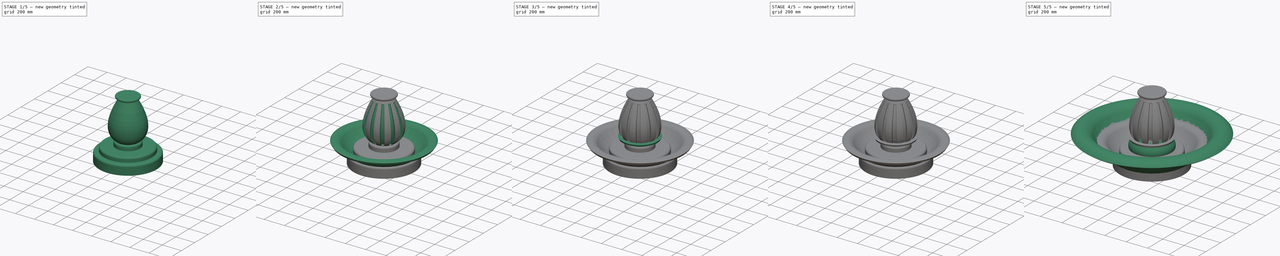
[diagram: build sequence overview — one tinted view per stage of 5, left to right]
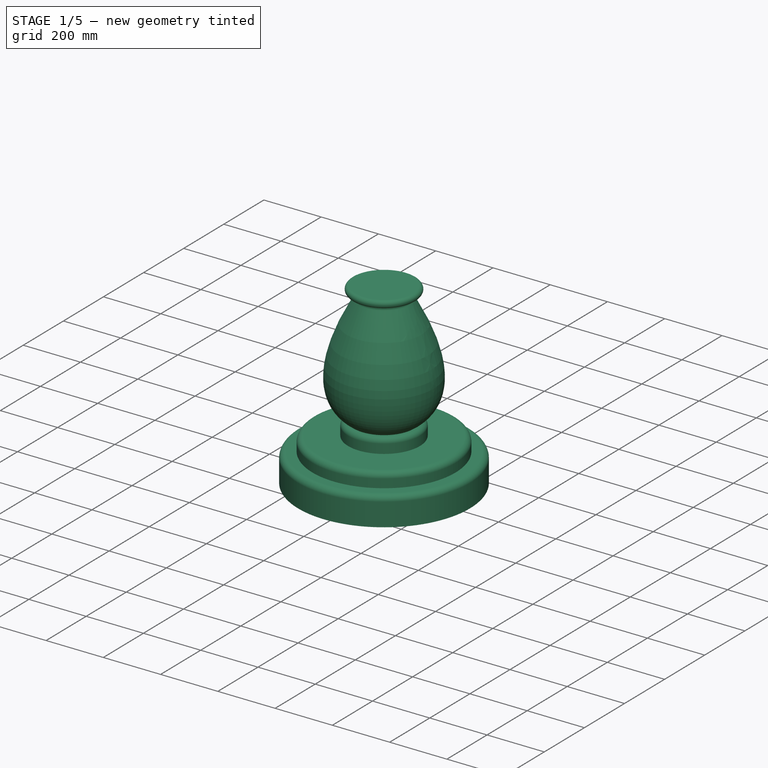
[diagram: stage 1 of 5 — iso view after this stage's code; geometry added in this stage tinted green]
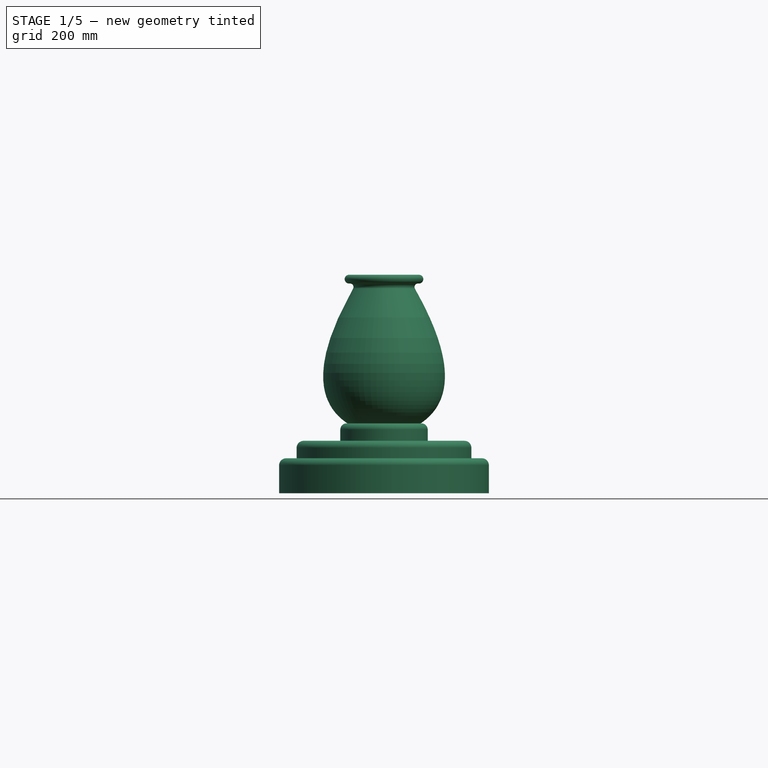
[diagram: stage 1 of 5 — front view after this stage's code; geometry added in this stage tinted green]
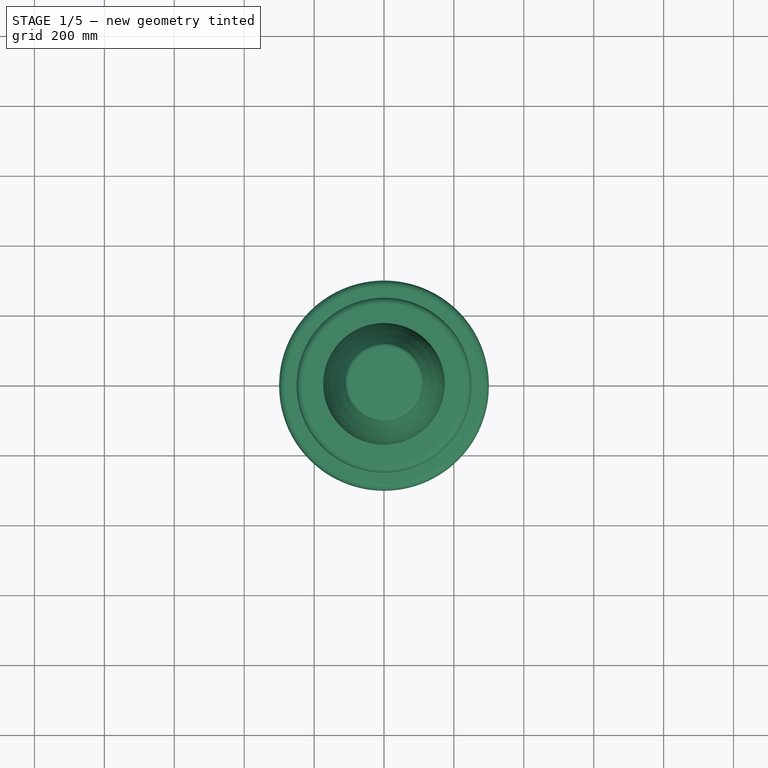
[diagram: stage 1 of 5 — top view after this stage's code; geometry added in this stage tinted green]
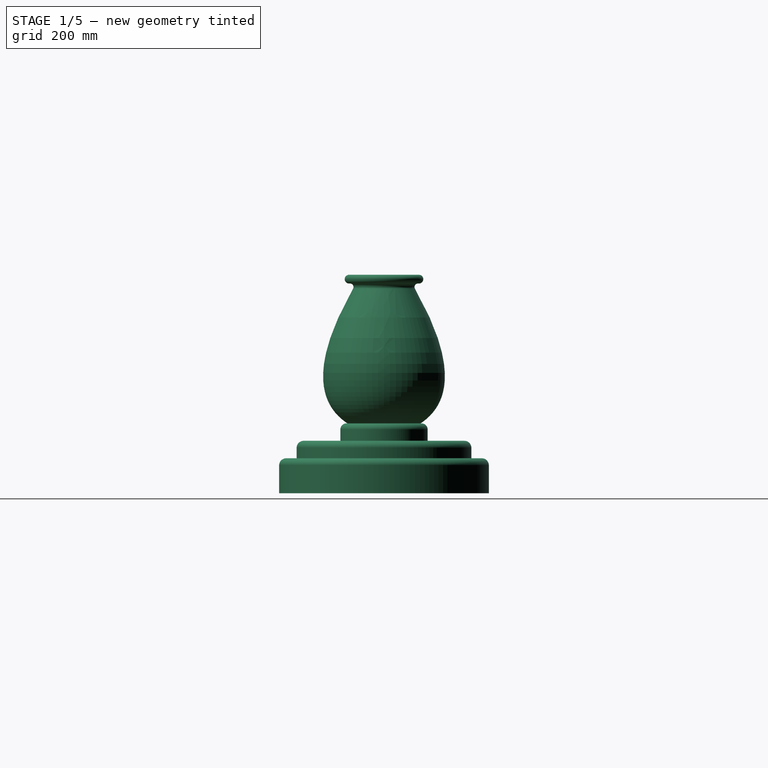
[diagram: stage 1 of 5 — right view after this stage's code; geometry added in this stage tinted green]
FCSTD DOCUMENT  (FreeCAD 0.18.4R)
Label: Fountain
License: All rights reserved
LicenseURL: http://en.wikipedia.org/wiki/All_rights_reserved
objects: Sketcher::SketchObject×10, PartDesign::Fillet×8, PartDesign::Revolution×6, PartDesign::Body×3, PartDesign::PolarPattern×3, PartDesign::Pad×2, PartDesign::Groove×2, PartDesign::Point×1, App::Part×1
note: 45 computed .brp shape members not serialized (recipe doc carries the construction recipe); baked Part::Feature solids carry a one-line shape summary decoded from their .brp

FEATURE [Sketcher::SketchObject] Sketch
  MapMode = 5
  Placement = pos=(0,0,0) rot=(1,0,0;1.5708rad)
  Support = -> [XZ_Plane001]
  sketch-geometry (18):
    g0: LineSegment StartX=0 StartY=0 StartZ=0 EndX=300 EndY=0 EndZ=0
    g1: LineSegment StartX=300 StartY=0 StartZ=0 EndX=300 EndY=100 EndZ=0
    g2: LineSegment StartX=300 StartY=100 StartZ=0 EndX=250 EndY=100 EndZ=0
    g3: LineSegment StartX=250 StartY=100 StartZ=0 EndX=250 EndY=150 EndZ=0
    g4: LineSegment StartX=250 StartY=150 StartZ=0 EndX=125 EndY=150 EndZ=0
    g5: LineSegment StartX=125 StartY=150 StartZ=0 EndX=125 EndY=200 EndZ=0
    g6: LineSegment StartX=80 StartY=600 StartZ=0 EndX=100 EndY=600 EndZ=0
    g7: LineSegment [constr] StartX=100 StartY=600 StartZ=0 EndX=100 EndY=625 EndZ=0
    g8: ArcOfCircle CenterX=100 CenterY=612.5 CenterZ=0 NormalX=0 NormalY=0 NormalZ=1 AngleXU=0 Radius=12.5 StartAngle=4.71239 EndAngle=7.85398
    g9: LineSegment StartX=125 StartY=200 StartZ=0 EndX=105 EndY=200 EndZ=0
    g10: Circle [constr] CenterX=80 CenterY=600 CenterZ=0 NormalX=0 NormalY=0 NormalZ=1 AngleXU=0 Radius=20
    g11: Circle [constr] CenterX=255 CenterY=300 CenterZ=0 NormalX=0 NormalY=0 NormalZ=1 AngleXU=0 Radius=20
    g12: Circle [constr] CenterX=105 CenterY=200 CenterZ=0 NormalX=0 NormalY=0 NormalZ=1 AngleXU=0 Radius=20
    g13: BSplineCurve PolesCount=3 KnotsCount=2 Degree=2 IsPeriodic=0
    g14: GeomPoint [constr] X=80 Y=600 Z=0
    g15: GeomPoint [constr] X=105 Y=200 Z=0
    g16: LineSegment StartX=100 StartY=625 StartZ=0 EndX=0 EndY=625 EndZ=0
    g17: LineSegment StartX=0 StartY=625 StartZ=0 EndX=0 EndY=0 EndZ=0
  constraints (47):
    c: Coincident(g0,g-1)
    c: Horizontal(g0)
    c: Coincident(g0,g1)
    c: Vertical(g1)
    c: Coincident(g1,g2)
    c: Horizontal(g2)
    c: Coincident(g2,g3)
    c: Vertical(g3)
    c: Coincident(g3,g4)
    c: Coincident(g4,g5)
    c: Vertical(g5)
    c: DistanceX(g0,g0) = 300
    c: DistanceY(g1,g1) = 100
    c: DistanceX(g2,g2) = 50
    c: DistanceX(g0,g4) = 125
    c: Horizontal(g4)
    c: DistanceY(g5,g5) = 50
    c: Equal(g3,g5)
    c: Horizontal(g6)
    c: Coincident(g6,g7)
    c: Vertical(g7)
    c: PointOnObject(g8,g7)
    c: Coincident(g8,g7)
    c: Coincident(g8,g6)
    c: Radius(g8) = 12.5
    c: DistanceX(g0,g7) = 100
    c: DistanceX(g6,g6) = 20
    c: Coincident(g9,g5)
    c: Horizontal(g9)
    c: Coincident(g13,g6)
    c: Radius(g10) = 20
    c: Equal(g10,g11)
    c: Equal(g10,g12)
    c: Coincident(g13,g9)
    c: InternalAlignment(g10,g13)
    c: InternalAlignment(g11,g13)
    c: InternalAlignment(g12,g13)
    c: InternalAlignment(g14,g13)
    c: InternalAlignment(g15,g13)
    c: DistanceY(g0,g6) = 600
    c: Equal(g9,g6)
    c: Tangent(g8,g16) = -1.5708
    c: Coincident(g16,g17)
    c: Coincident(g17,g0)
    c: Vertical(g17)
    c: DistanceY(g9,g11) = 100
    c: DistanceX(g9,g11) = 150
FEATURE [PartDesign::Revolution] Revolution
  Angle = 360
  Axis = (0,2e-16,1)
  Base = (0,0,0)
  Placement = pos=(0,0,0) rot=(1,0,0;1.5708rad)
  Profile = -> Sketch
  ReferenceAxis = -> Sketch [V_Axis]
  Refine = true
  Reversed = true
FEATURE [PartDesign::Fillet] Fillet001
  Base = -> Revolution [Edge6,Edge9]
  BaseFeature = -> Revolution
  Placement = pos=(0,0,0) rot=(1,0,0;1.5708rad)
  Radius = 20
FEATURE [PartDesign::Fillet] Fillet002
  Base = -> Fillet001 [Edge12]
  BaseFeature = -> Fillet001
  Placement = pos=(0,0,0) rot=(1,0,0;1.5708rad)
  Radius = 18
FEATURE [PartDesign::Fillet] Fillet003
  Base = -> Fillet002 [Edge10]
  BaseFeature = -> Fillet002
  Placement = pos=(0,0,0) rot=(1,0,0;1.5708rad)
  Radius = 10
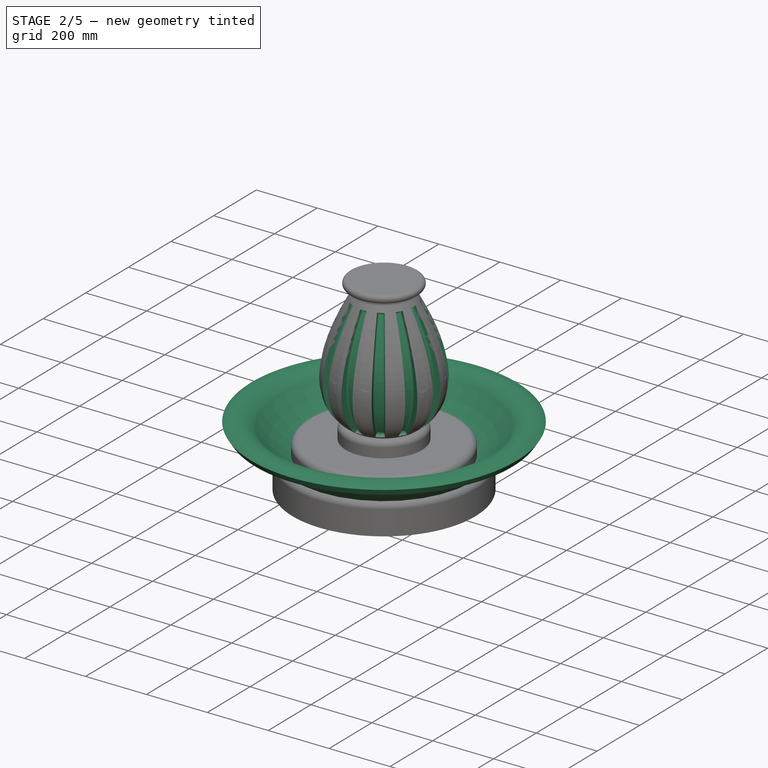
[diagram: stage 2 of 5 — iso view after this stage's code; geometry added in this stage tinted green]
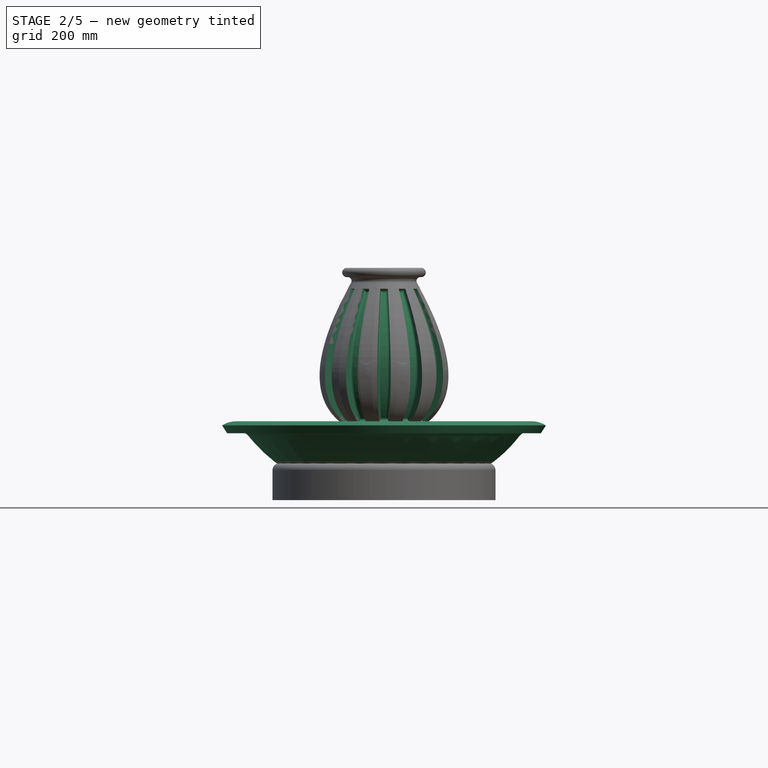
[diagram: stage 2 of 5 — front view after this stage's code; geometry added in this stage tinted green]
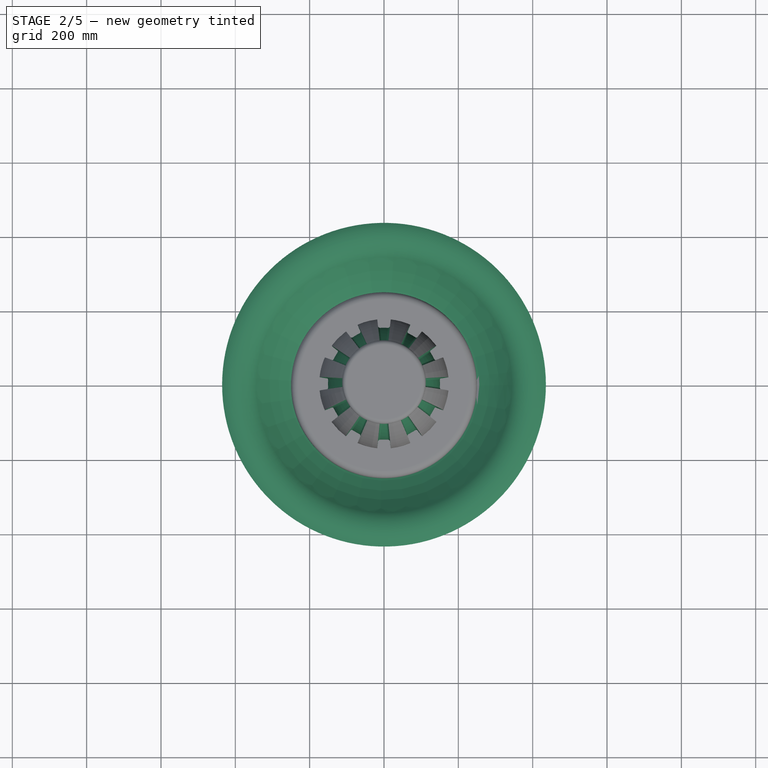
[diagram: stage 2 of 5 — top view after this stage's code; geometry added in this stage tinted green]
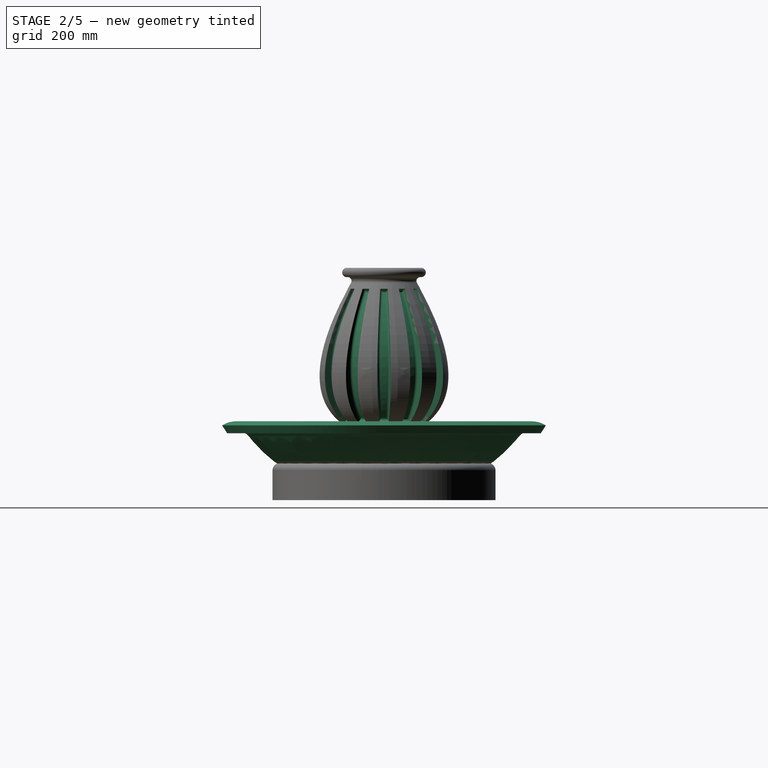
[diagram: stage 2 of 5 — right view after this stage's code; geometry added in this stage tinted green]
FEATURE [PartDesign::Body] Body001  label="Tina grande"
  Group = -> [Sketch001,Revolution001,Sketch002,Pad,Fillet,DatumPoint,Sketch003,Revolution002]
  Origin = -> Origin002
  Placement = pos=(0,0,625) rot=(0,0,1;0rad)
  Tip = -> Revolution002
FEATURE [Sketcher::SketchObject] Sketch004
  MapMode = 5
  Placement = pos=(0,0,0) rot=(1,0,0;1.5708rad)
  Support = -> [XZ_Plane003]
  sketch-geometry (12):
    g0: LineSegment StartX=0 StartY=0 StartZ=0 EndX=125 EndY=0 EndZ=0
    g1: LineSegment StartX=125 StartY=0 StartZ=0 EndX=125 EndY=30 EndZ=0
    g2: LineSegment StartX=0 StartY=25 StartZ=0 EndX=0 EndY=0 EndZ=0
    g3: ArcOfCircle CenterX=63.6614 CenterY=405.017 CenterZ=0 NormalX=0 NormalY=0 NormalZ=1 AngleXU=0 Radius=380 StartAngle=4.87452 EndAngle=5.6164
    g4: ArcOfCircle CenterX=397.632 CenterY=142.169 CenterZ=0 NormalX=0 NormalY=0 NormalZ=1 AngleXU=0 Radius=45 StartAngle=0.998551 EndAngle=2.4748
    g5: LineSegment StartX=0 StartY=25 StartZ=0 EndX=100 EndY=25 EndZ=0
    g6: LineSegment StartX=100 StartY=25 StartZ=0 EndX=100 EndY=51.5018 EndZ=0
    g7: LineSegment StartX=422 StartY=180 StartZ=0 EndX=435.538 EndY=201.017 EndZ=0
    g8: LineSegment [constr] StartX=100 StartY=25 StartZ=0 EndX=125 EndY=25 EndZ=0
    g9: ArcOfCircle CenterX=63.3365 CenterY=404.604 CenterZ=0 NormalX=0 NormalY=0 NormalZ=1 AngleXU=0 Radius=355 StartAngle=4.81585 EndAngle=5.61763
    g10: ArcOfCircle CenterX=397.632 CenterY=142.169 CenterZ=0 NormalX=0 NormalY=0 NormalZ=1 AngleXU=0 Radius=70 StartAngle=0.998551 EndAngle=2.47604
    g11: LineSegment [constr] StartX=125 StartY=30 StartZ=0 EndX=125 EndY=55 EndZ=0
  constraints (36):
    c: Coincident(g0,g1)
    c: Coincident(g2,g0)
    c: Horizontal(g0)
    c: Vertical(g1)
    c: Vertical(g2)
    c: Coincident(g0,g-1)
    c: Coincident(g3,g1)
    c: Coincident(g2,g5)
    c: Horizontal(g5)
    c: Coincident(g5,g6)
    c: Vertical(g6)
    c: Tangent(g4,g3) = 1.5708
    c: Radius(g3) = 380
    c: DistanceY(g1,g1) = 30
    c: DistanceY(g2,g2) = 25
    c: Coincident(g8,g5)
    c: PointOnObject(g8,g1)
    c: Horizontal(g8)
    c: Equal(g8,g2)
    c: Coincident(g7,g4)
    c: Radius(g4) = 45
    c: Equal(g7,g2)
    c: Coincident(g9,g6)
    c: Coincident(g10,g7)
    c: Radius(g10) = 70
    c: Radius(g9) = 355
    c: Coincident(g11,g1)
    c: PointOnObject(g11,g9)
    c: Vertical(g11)
    c: DistanceY(g0,g4) = 180
    c: DistanceX(g0,g4) = 422
    c: Equal(g11,g8)
    c: Tangent(g10,g9) = 1.5708
    c: Coincident(g10,g4)
    c: DistanceY(g0,g3) = 170
    c: DistanceX(g5,g5) = 100
FEATURE [PartDesign::Revolution] Revolution003
  Angle = 360
  Axis = (0,2e-16,1)
  Base = (0,0,0)
  Placement = pos=(0,0,0) rot=(1,0,0;1.5708rad)
  Profile = -> Sketch004
  ReferenceAxis = -> Sketch004 [V_Axis]
  Refine = true
  Reversed = true
FEATURE [PartDesign::Body] Body002  label="Tina chica"
  Group = -> [Sketch004,Revolution003,Sketch005,Revolution004,Sketch006,Revolution005,Sketch007,Pad001,Sketch008,Groove,PolarPattern,PolarPattern001,Fillet004,Fillet005,Fillet006]
  Origin = -> Origin003
  Placement = pos=(0,0,1150) rot=(0,0,1;0rad)
  Tip = -> Fillet006
FEATURE [Sketcher::SketchObject] Sketch009
  MapMode = 5
  Placement = pos=(0,0,0) rot=(1,0,0;1.5708rad)
  Support = -> [XZ_Plane001]
  sketch-geometry (10):
    g0: Circle [constr] CenterX=84.8833 CenterY=563.888 CenterZ=0 NormalX=0 NormalY=0 NormalZ=1 AngleXU=0 Radius=30
    g1: Circle [constr] CenterX=203.354 CenterY=347.113 CenterZ=0 NormalX=0 NormalY=0 NormalZ=1 AngleXU=0 Radius=30
    g2: Circle [constr] CenterX=108.506 CenterY=218.19 CenterZ=0 NormalX=0 NormalY=0 NormalZ=1 AngleXU=0 Radius=30
    g3: BSplineCurve PolesCount=3 KnotsCount=2 Degree=2 IsPeriodic=0
    g4: GeomPoint [constr] X=84.8833 Y=563.888 Z=0
    g5: GeomPoint [constr] X=108.506 Y=218.19 Z=0
    g6: LineSegment StartX=108.506 StartY=218.19 StartZ=0 EndX=140.968 EndY=184.531 EndZ=0
    g7: LineSegment StartX=140.968 StartY=184.531 StartZ=0 EndX=284.644 EndY=418.321 EndZ=0
    g8: LineSegment StartX=284.644 StartY=418.321 StartZ=0 EndX=165.544 EndY=594.136 EndZ=0
    g9: LineSegment StartX=165.544 StartY=594.136 StartZ=0 EndX=84.8833 EndY=563.888 EndZ=0
  constraints (13):
    c: Radius(g0) = 30
    c: Equal(g0,g1)
    c: Equal(g0,g2)
    c: InternalAlignment(g0,g3)
    c: InternalAlignment(g1,g3)
    c: InternalAlignment(g2,g3)
    c: InternalAlignment(g4,g3)
    c: InternalAlignment(g5,g3)
    c: Coincident(g6,g3)
    c: Coincident(g6,g7)
    c: Coincident(g7,g8)
    c: Coincident(g8,g9)
    c: Coincident(g9,g3)
FEATURE [PartDesign::Groove] Groove001
  Angle = 12
  Axis = (0,2e-16,1)
  Base = (0,0,0)
  BaseFeature = -> Fillet003
  Midplane = true
  Placement = pos=(0,0,0) rot=(1,0,0;1.5708rad)
  Profile = -> Sketch009
  ReferenceAxis = -> Sketch009 [V_Axis]
  Refine = true
FEATURE [PartDesign::PolarPattern] PolarPattern002
  Angle = 360
  Axis = -> Z_Axis001
  BaseFeature = -> Groove001
  Occurrences = 12
  Originals = -> [Groove001]
  Placement = pos=(0,0,0) rot=(1,0,0;1.5708rad)
  Refine = true
FEATURE [PartDesign::Fillet] Fillet007
  Base = -> PolarPattern002 [Face64,Face63,Face52,Face65,Face61,Face62,Face55,Face56,Face57,Face60,Face59,Face58]
  BaseFeature = -> PolarPattern002
  Placement = pos=(0,0,0) rot=(1,0,0;1.5708rad)
  Radius = 6
FEATURE [PartDesign::Body] Body  label="Base"
  Group = -> [Sketch,Revolution,Fillet001,Fillet002,Fillet003,Sketch009,Groove001,PolarPattern002,Fillet007]
  Origin = -> Origin001
  Tip = -> Fillet007
FEATURE [App::Part] Part  label="Fountain"
  Group = -> [Body,Body001,Body002]
  Origin = -> Origin
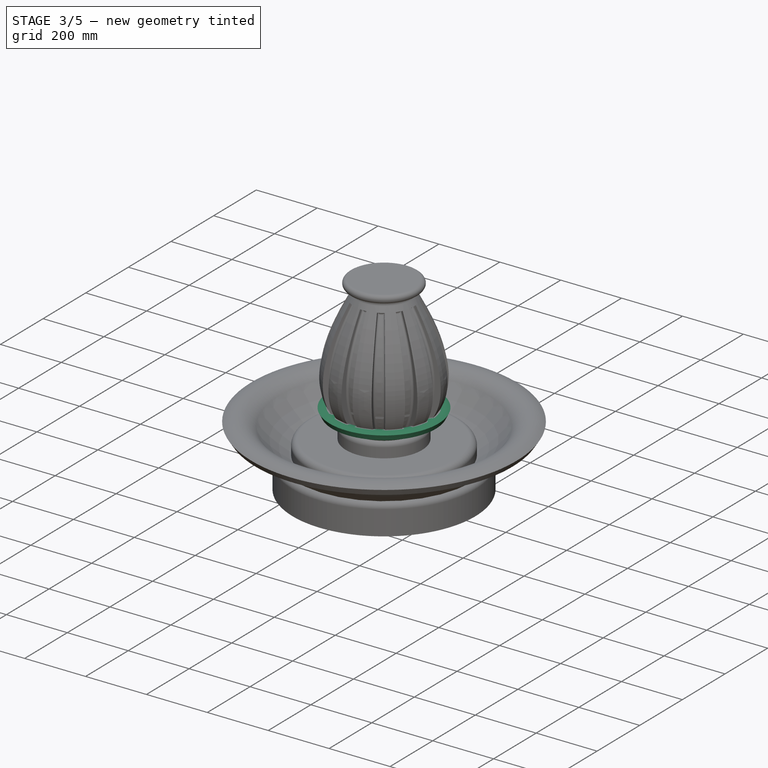
[diagram: stage 3 of 5 — iso view after this stage's code; geometry added in this stage tinted green]
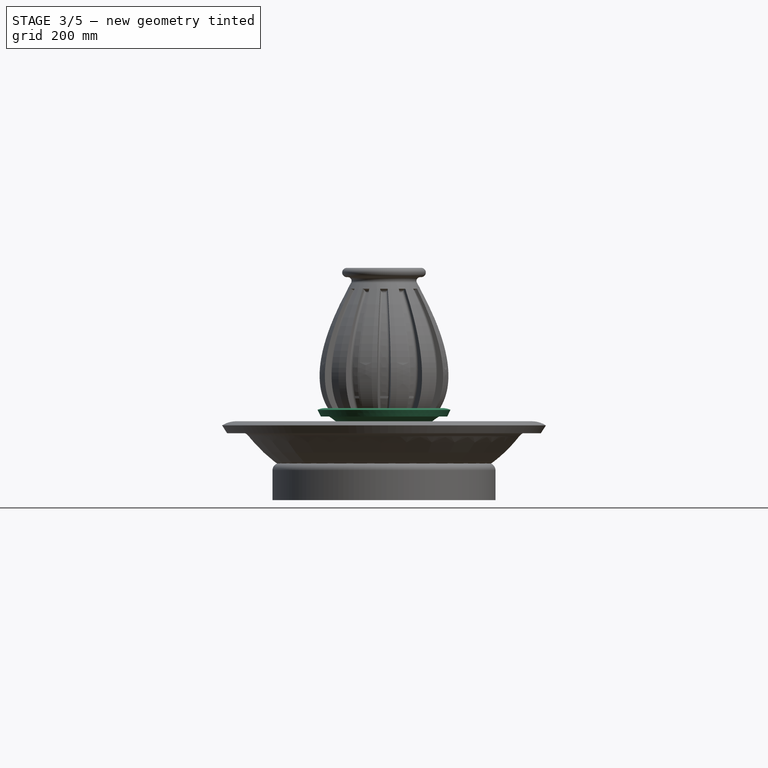
[diagram: stage 3 of 5 — front view after this stage's code; geometry added in this stage tinted green]
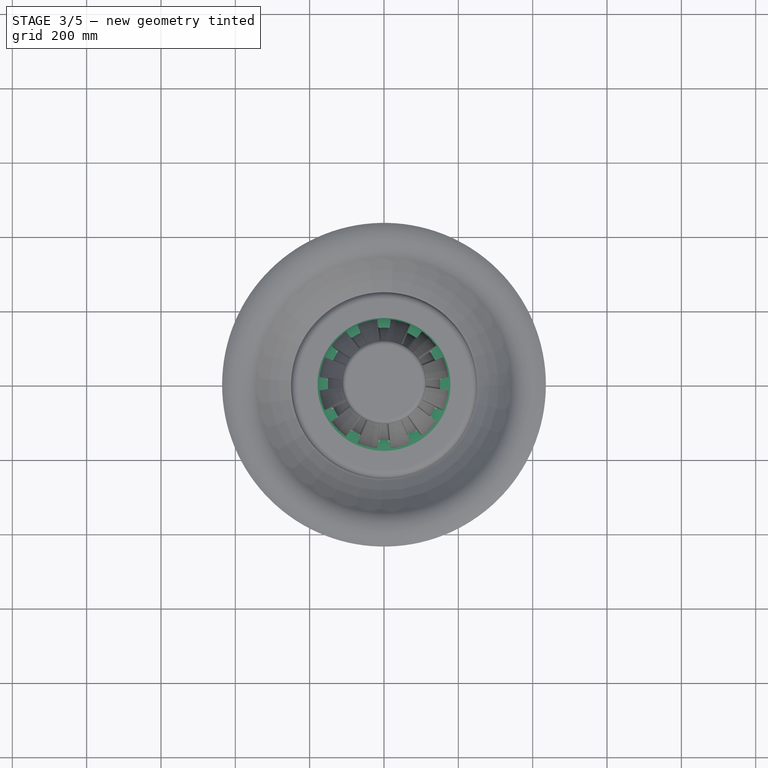
[diagram: stage 3 of 5 — top view after this stage's code; geometry added in this stage tinted green]
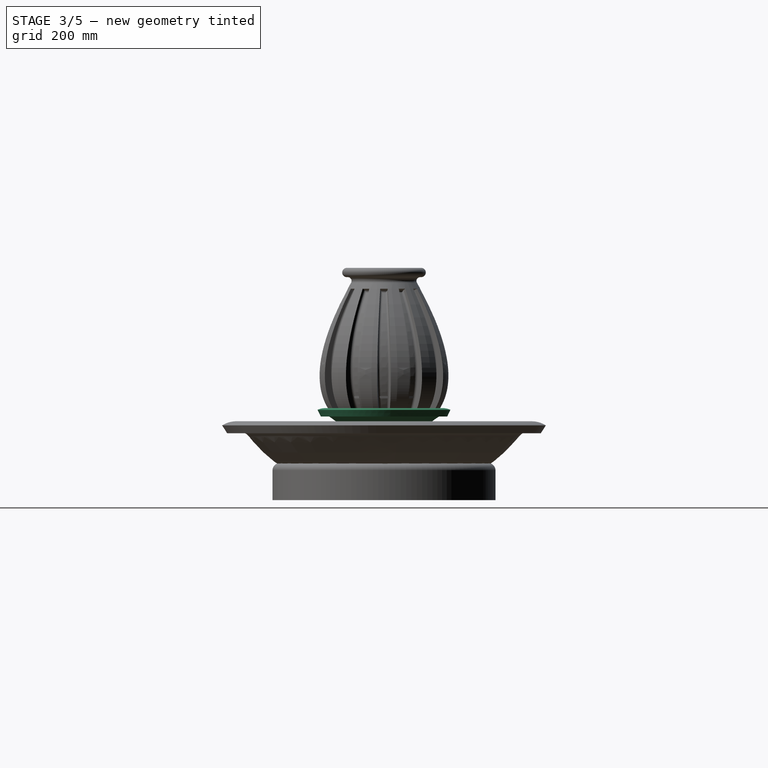
[diagram: stage 3 of 5 — right view after this stage's code; geometry added in this stage tinted green]
FEATURE [Sketcher::SketchObject] Sketch005
  ExternalGeometry = -> [Revolution003]
  MapMode = 5
  Placement = pos=(0,0,0) rot=(1,0,0;1.5708rad)
  Support = -> [XZ_Plane003]
  sketch-geometry (11):
    g0: LineSegment StartX=0 StartY=25 StartZ=0 EndX=80 EndY=25 EndZ=0
    g1: LineSegment StartX=80 StartY=25 StartZ=0 EndX=80 EndY=105 EndZ=0
    g2: LineSegment StartX=0 StartY=45 StartZ=0 EndX=0 EndY=25 EndZ=0
    g3: LineSegment StartX=0 StartY=45 StartZ=0 EndX=60 EndY=45 EndZ=0
    g4: LineSegment StartX=60 StartY=45 StartZ=0 EndX=60 EndY=105 EndZ=0
    g5: LineSegment [constr] StartX=60 StartY=45 StartZ=0 EndX=80 EndY=45 EndZ=0
    g6: ArcOfCircle CenterX=220 CenterY=105 CenterZ=0 NormalX=0 NormalY=0 NormalZ=1 AngleXU=0 Radius=140 StartAngle=2.12934 EndAngle=3.14159
    g7: ArcOfCircle CenterX=159.055 CenterY=202.523 CenterZ=0 NormalX=0 NormalY=0 NormalZ=1 AngleXU=0 Radius=25 StartAngle=1.11766 EndAngle=2.12934
    g8: ArcOfCircle CenterX=220 CenterY=105 CenterZ=0 NormalX=0 NormalY=0 NormalZ=1 AngleXU=0 Radius=160 StartAngle=2.12934 EndAngle=3.14159
    g9: ArcOfCircle CenterX=159.055 CenterY=202.523 CenterZ=0 NormalX=0 NormalY=0 NormalZ=1 AngleXU=0 Radius=45 StartAngle=1.11766 EndAngle=2.12934
    g10: LineSegment StartX=170 StartY=225 StartZ=0 EndX=178.756 EndY=242.982 EndZ=0
  constraints (31):
    c: Coincident(g0,g1)
    c: Coincident(g2,g0)
    c: Horizontal(g0)
    c: Vertical(g1)
    c: Vertical(g2)
    c: PointOnObject(g0,g-2)
    c: Horizontal(g-3,g0)
    c: DistanceX(g0,g0) = 80
    c: DistanceY(g2,g2) = 20
    c: Coincident(g3,g2)
    c: Horizontal(g3)
    c: Coincident(g4,g3)
    c: Vertical(g4)
    c: Coincident(g5,g3)
    c: PointOnObject(g5,g1)
    c: Horizontal(g5)
    c: Equal(g5,g2)
    c: Coincident(g9,g7)
    c: Coincident(g10,g7)
    c: Coincident(g10,g9)
    c: Tangent(g6,g1) = 1.5708
    c: Tangent(g8,g4) = 1.5708
    c: Tangent(g7,g6) = -1.5708
    c: Equal(g10,g2)
    c: Coincident(g6,g8)
    c: DistanceY(g0,g1) = 80
    c: Radius(g6) = 140
    c: Radius(g7) = 25
    c: DistanceY(g0,g7) = 200
    c: DistanceX(g0,g7) = 90
    c: Tangent(g9,g8) = -1.5708
FEATURE [PartDesign::Revolution] Revolution004
  Angle = 360
  Axis = (0,2e-16,1)
  Base = (0,0,0)
  BaseFeature = -> Revolution003
  Placement = pos=(0,0,0) rot=(1,0,0;1.5708rad)
  Profile = -> Sketch005
  ReferenceAxis = -> Sketch005 [V_Axis]
  Refine = true
  Reversed = true
FEATURE [Sketcher::SketchObject] Sketch006
  ExternalGeometry = -> [Revolution004]
  MapMode = 5
  Placement = pos=(0,0,0) rot=(1,0,0;1.5708rad)
  Support = -> [XZ_Plane003]
  sketch-geometry (5):
    g0: LineSegment StartX=7.11e-14 StartY=45 StartZ=0 EndX=40 EndY=45 EndZ=0
    g1: LineSegment StartX=40 StartY=45 StartZ=0 EndX=40 EndY=195 EndZ=0
    g2: LineSegment StartX=7.11e-14 StartY=525 StartZ=0 EndX=7.11e-14 EndY=45 EndZ=0
    g3: ArcOfCircle CenterX=110 CenterY=195 CenterZ=0 NormalX=0 NormalY=0 NormalZ=1 AngleXU=0 Radius=70 StartAngle=1.37737 EndAngle=3.14159
    g4: ArcOfCircle CenterX=-42.72 CenterY=345 CenterZ=0 NormalX=0 NormalY=0 NormalZ=1 AngleXU=0 Radius=185 StartAngle=5.82816 EndAngle=7.62096
  constraints (16):
    c: Coincident(g0,g1)
    c: Coincident(g2,g0)
    c: Horizontal(g0)
    c: Vertical(g1)
    c: Vertical(g2)
    c: PointOnObject(g0,g-2)
    c: DistanceX(g0,g0) = 40
    c: Horizontal(g0,g-3)
    c: Coincident(g4,g3)
    c: Coincident(g2,g4)
    c: Tangent(g3,g1) = 1.5708
    c: DistanceY(g1,g1) = 150
    c: Radius(g3) = 70
    c: DistanceY(g2,g2) = 480
    c: DistanceY(g0,g4) = 300
    c: Radius(g4) = 185
FEATURE [PartDesign::Revolution] Revolution005
  Angle = 360
  Axis = (0,2e-16,1)
  Base = (0,0,0)
  BaseFeature = -> Revolution004
  Placement = pos=(0,0,0) rot=(1,0,0;1.5708rad)
  Profile = -> Sketch006
  ReferenceAxis = -> Sketch006 [V_Axis]
  Refine = true
  Reversed = true
FEATURE [Sketcher::SketchObject] Sketch007
  ExternalGeometry = -> [Revolution005]
  MapMode = 5
  Placement = pos=(0,0,0) rot=(1,0,0;1.5708rad)
  Support = -> [XZ_Plane003]
  sketch-geometry (3):
    g0: ArcOfCircle CenterX=9.51206 CenterY=283.857 CenterZ=0 NormalX=0 NormalY=0 NormalZ=1 AngleXU=0 Radius=22 StartAngle=2.01791 EndAngle=3.62177
    g1: LineSegment StartX=-10 StartY=273.695 StartZ=0 EndX=10 EndY=273.695 EndZ=0
    g2: ArcOfCircle CenterX=-9.51206 CenterY=283.857 CenterZ=0 NormalX=0 NormalY=0 NormalZ=1 AngleXU=0 Radius=22 StartAngle=5.80301 EndAngle=7.40687
  constraints (10):
    c: PointOnObject(g0,g-2)
    c: Coincident(g1,g0)
    c: Symmetric(g1,g0,g-2)
    c: Coincident(g2,g0)
    c: Coincident(g2,g1)
    c: Equal(g2,g0)
    c: DistanceX(g1,g1) = 20
    c: DistanceY(g1,g0) = 30
    c: Radius(g2) = 22
    c: DistanceY(g-3,g1) = 10
FEATURE [PartDesign::Pad] Pad001
  BaseFeature = -> Revolution005
  Length = 140
  Length2 = 100
  Placement = pos=(0,0,0) rot=(1,0,0;1.5708rad)
  Profile = -> Sketch007
  Refine = true
  Type = 0
FEATURE [Sketcher::SketchObject] Sketch008
  MapMode = 5
  Placement = pos=(0,0,0) rot=(0.57735,0.57735,0.57735;2.0944rad)
  Support = -> [YZ_Plane003]
  sketch-geometry (4):
    g0: ArcOfCircle CenterX=42 CenterY=346.351 CenterZ=0 NormalX=0 NormalY=0 NormalZ=1 AngleXU=0 Radius=175 StartAngle=1.93295 EndAngle=3.35084
    g1: LineSegment StartX=-129.183 StartY=310 StartZ=0 EndX=-169.183 EndY=310 EndZ=0
    g2: ArcOfCircle CenterX=29.1038 CenterY=336.122 CenterZ=0 NormalX=0 NormalY=0 NormalZ=1 AngleXU=0 Radius=200 StartAngle=1.81885 EndAngle=3.27258
    g3: LineSegment StartX=-20 StartY=510 StartZ=0 EndX=-20 EndY=530 EndZ=0
  constraints (14):
    c: Radius(g0) = 175
    c: DistanceX(g0,g-1) = 20
    c: DistanceY(g-1,g0) = 510
    c: DistanceX(g-1,g0) = 42
    c: DistanceY(g0,g0) = 200
    c: Coincident(g2,g1)
    c: Horizontal(g1)
    c: Coincident(g0,g1)
    c: Coincident(g3,g0)
    c: Coincident(g3,g2)
    c: Vertical(g3)
    c: DistanceX(g1,g1) = 40
    c: DistanceY(g3,g3) = 20
    c: Radius(g2) = 200
FEATURE [PartDesign::Groove] Groove
  Angle = 10
  Axis = (-2e-16,3e-16,1)
  Base = (0,0,0)
  BaseFeature = -> Pad001
  Midplane = true
  Placement = pos=(0,0,0) rot=(1,0,0;1.5708rad)
  Profile = -> Sketch008
  ReferenceAxis = -> Sketch008 [V_Axis]
  Refine = true
  Reversed = true
FEATURE [PartDesign::PolarPattern] PolarPattern
  Angle = 360
  Axis = -> Z_Axis003
  BaseFeature = -> Groove
  Occurrences = 24
  Originals = -> [Pad001]
  Placement = pos=(0,0,0) rot=(1,0,0;1.5708rad)
  Refine = true
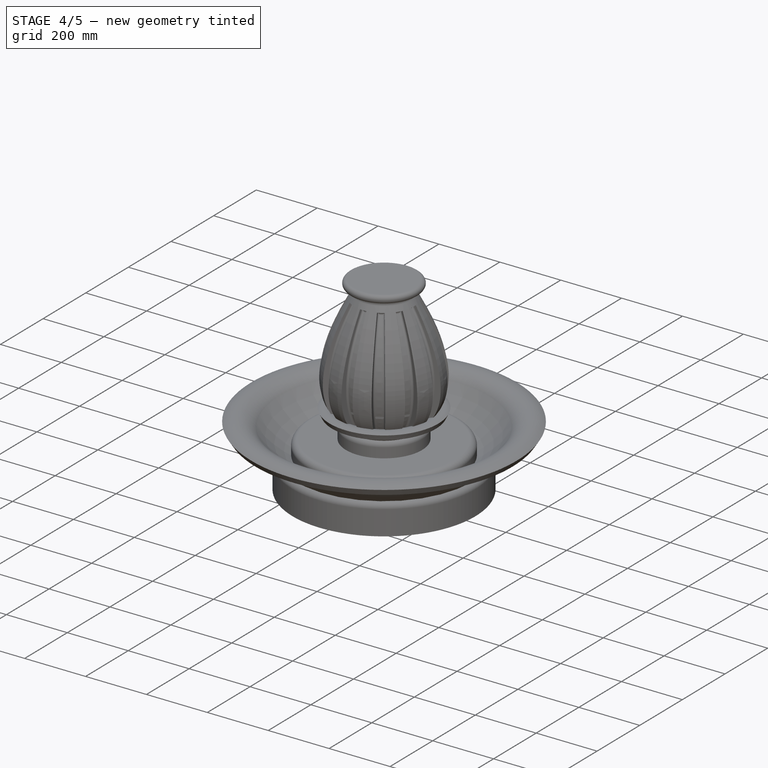
[diagram: stage 4 of 5 — iso view after this stage's code; geometry added in this stage tinted green]
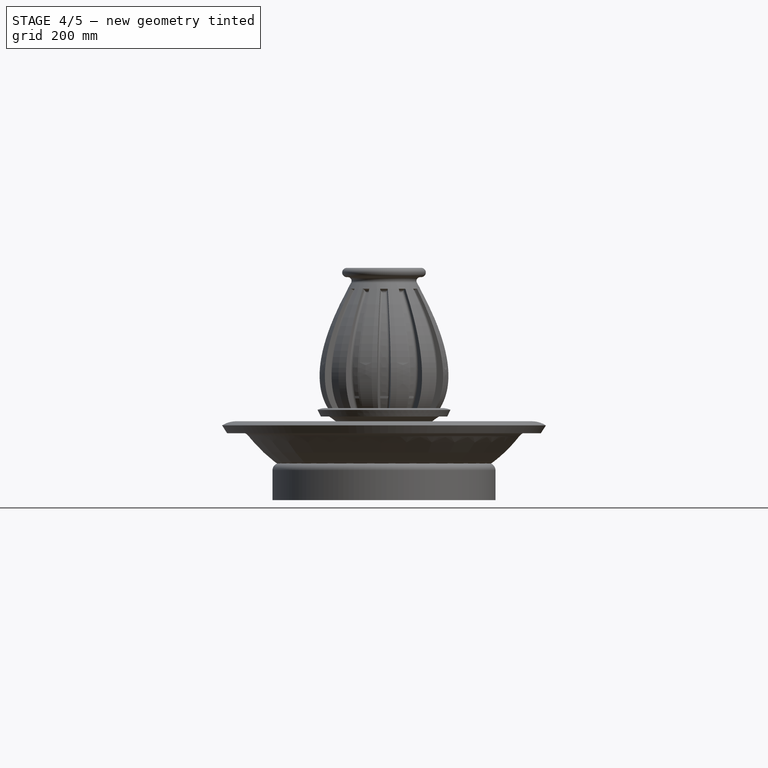
[diagram: stage 4 of 5 — front view after this stage's code; geometry added in this stage tinted green]
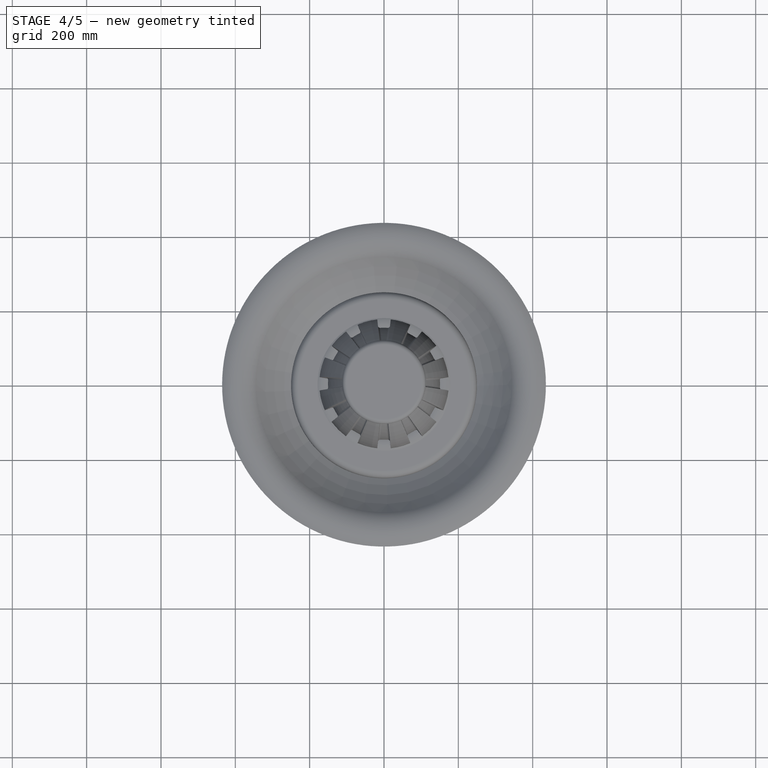
[diagram: stage 4 of 5 — top view after this stage's code; geometry added in this stage tinted green]
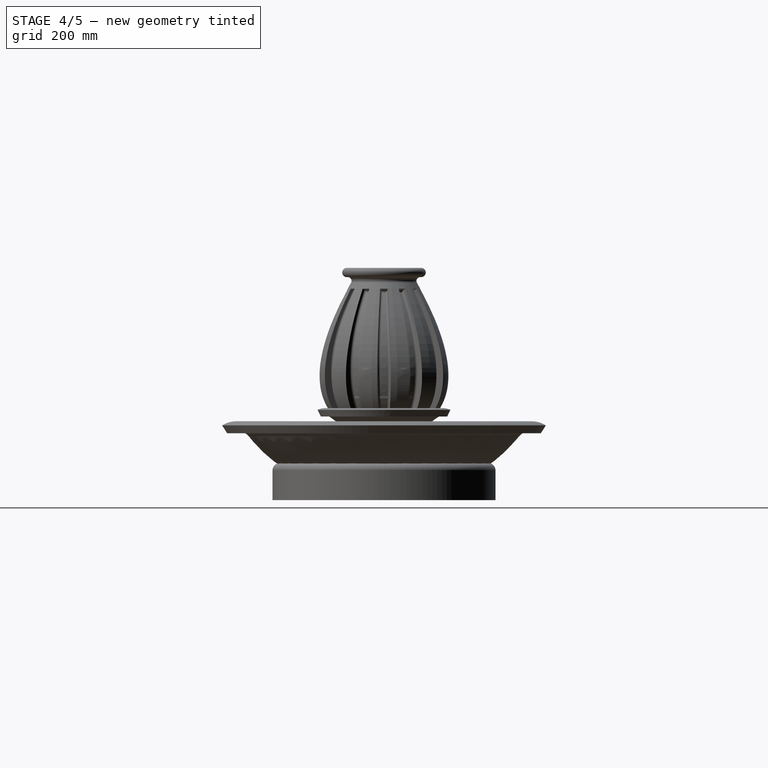
[diagram: stage 4 of 5 — right view after this stage's code; geometry added in this stage tinted green]
FEATURE [PartDesign::PolarPattern] PolarPattern001
  Angle = 360
  Axis = -> Z_Axis003
  BaseFeature = -> PolarPattern
  Occurrences = 12
  Originals = -> [Groove]
  Placement = pos=(0,0,0) rot=(1,0,0;1.5708rad)
  Refine = true
FEATURE [PartDesign::Fillet] Fillet004
  Base = -> PolarPattern001 [Edge199,Edge196,Edge355,Edge360,Edge303,Edge308,Edge295,Edge300,Edge327,Edge323,Edge243,Edge248,Edge262,Edge257,Edge223,Edge228,Edge208,Edge203,Edge405,Edge410,Edge418,Edge413,Edge421,Edge426]
  BaseFeature = -> PolarPattern001
  Placement = pos=(0,0,0) rot=(1,0,0;1.5708rad)
  Radius = 1.75
FEATURE [PartDesign::Fillet] Fillet005
  Base = -> Fillet004 [Edge299,Edge359,Edge287,Edge329,Edge227,Edge245,Edge203,Edge179,Edge413,Edge425,Edge437]
  BaseFeature = -> Fillet004
  Placement = pos=(0,0,0) rot=(1,0,0;1.5708rad)
  Radius = 1.2
FEATURE [PartDesign::Fillet] Fillet006
  Base = -> Fillet005 [Edge618,Edge606]
  BaseFeature = -> Fillet005
  Placement = pos=(0,0,0) rot=(1,0,0;1.5708rad)
  Radius = 15
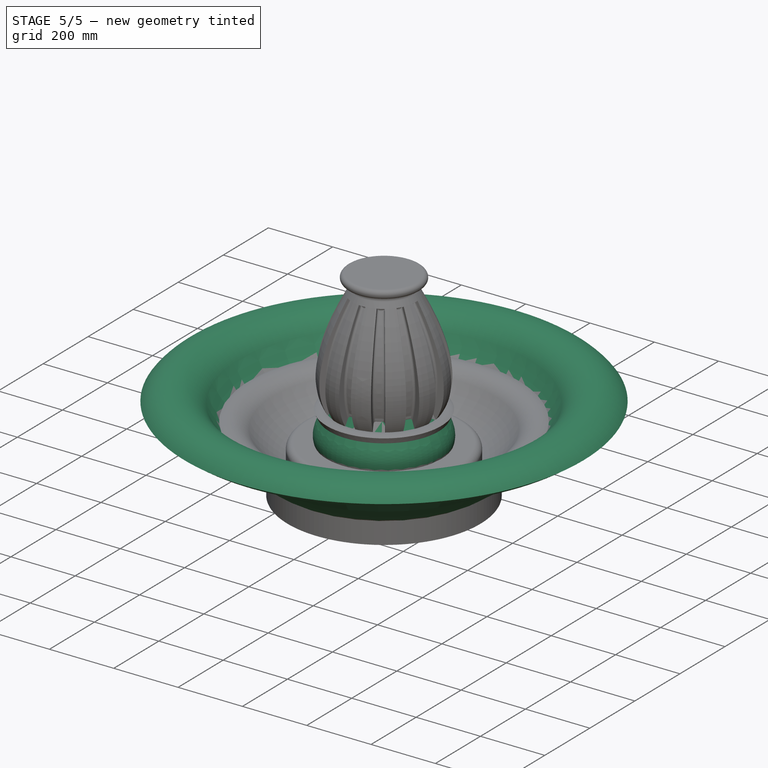
[diagram: stage 5 of 5 — iso view after this stage's code; geometry added in this stage tinted green]
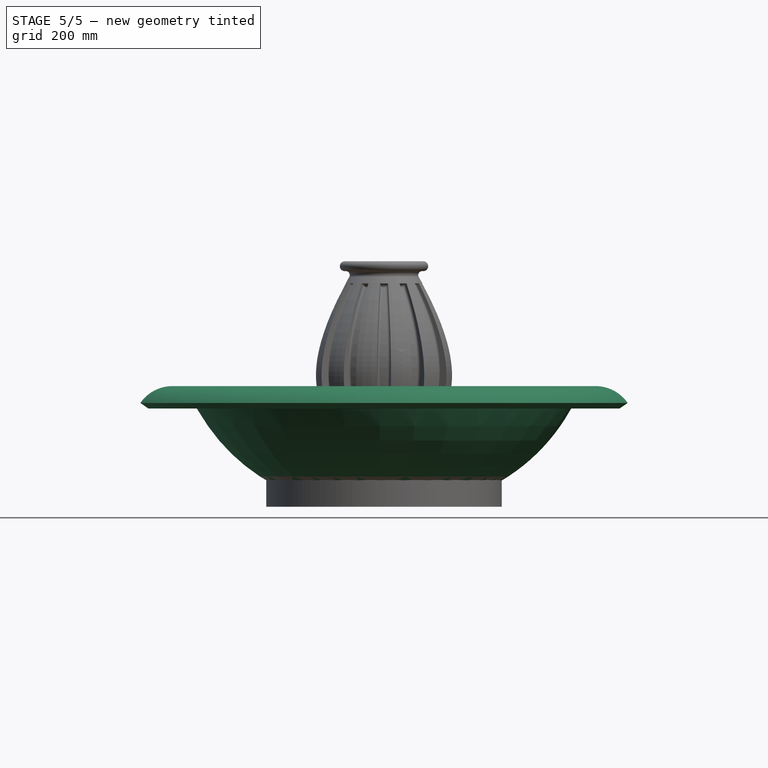
[diagram: stage 5 of 5 — front view after this stage's code; geometry added in this stage tinted green]
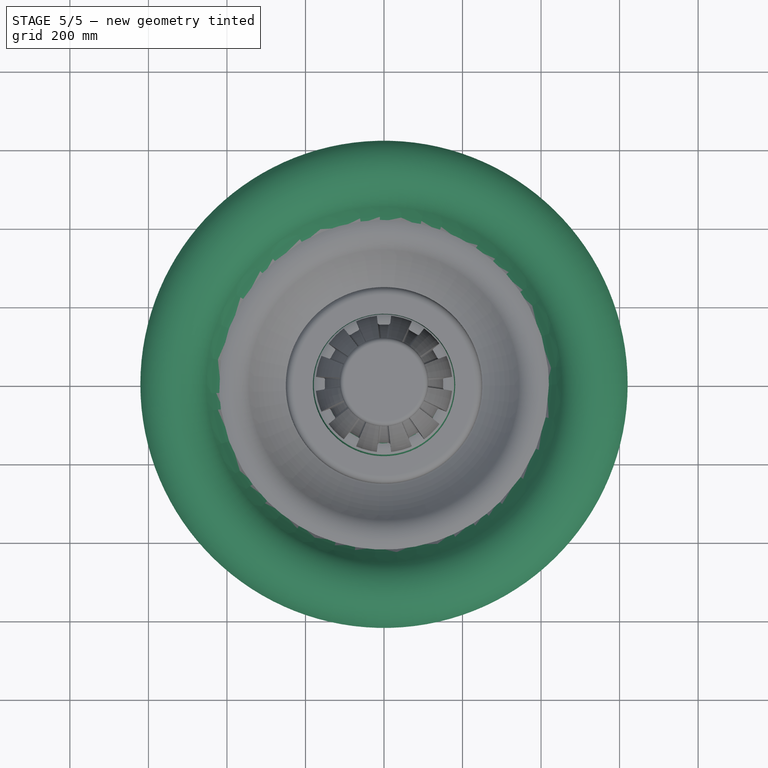
[diagram: stage 5 of 5 — top view after this stage's code; geometry added in this stage tinted green]
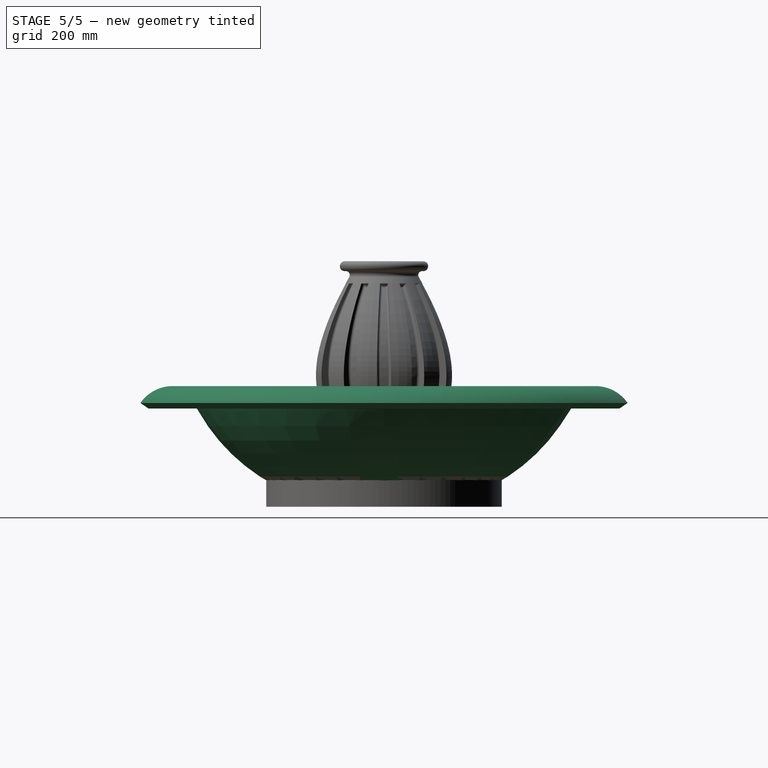
[diagram: stage 5 of 5 — right view after this stage's code; geometry added in this stage tinted green]
FEATURE [Sketcher::SketchObject] Sketch001
  MapMode = 5
  Placement = pos=(0,0,0) rot=(1,0,0;1.5708rad)
  Support = -> [XZ_Plane002]
  sketch-geometry (13):
    g0: LineSegment StartX=0 StartY=0 StartZ=0 EndX=90 EndY=0 EndZ=0
    g1: LineSegment StartX=90 StartY=25 StartZ=0 EndX=0 EndY=25 EndZ=0
    g2: LineSegment StartX=0 StartY=25 StartZ=0 EndX=0 EndY=0 EndZ=0
    g3: ArcOfCircle CenterX=90 CenterY=100 CenterZ=0 NormalX=0 NormalY=0 NormalZ=1 AngleXU=0 Radius=75 StartAngle=4.71239 EndAngle=4.81256
    g4: ArcOfCircle CenterX=51.6 CenterY=482.075 CenterZ=0 NormalX=0 NormalY=0 NormalZ=1 AngleXU=0 Radius=459 StartAngle=4.81256 EndAngle=5.76922
    g5: ArcOfCircle CenterX=90 CenterY=100 CenterZ=0 NormalX=0 NormalY=0 NormalZ=1 AngleXU=0 Radius=100 StartAngle=4.71239 EndAngle=4.81256
    g6: ArcOfCircle CenterX=51.6 CenterY=482.075 CenterZ=0 NormalX=0 NormalY=0 NormalZ=1 AngleXU=0 Radius=484 StartAngle=4.81256 EndAngle=5.76922
    g7: ArcOfCircle CenterX=538.377 CenterY=207.249 CenterZ=0 NormalX=0 NormalY=0 NormalZ=1 AngleXU=0 Radius=100 StartAngle=0.606514 EndAngle=2.62762
    g8: ArcOfCircle CenterX=538.377 CenterY=207.249 CenterZ=0 NormalX=0 NormalY=0 NormalZ=1 AngleXU=0 Radius=75 StartAngle=0.606514 EndAngle=2.62762
    g9: LineSegment [constr] StartX=473.067 StartY=244.122 StartZ=0 EndX=451.297 EndY=256.413 EndZ=0
    g10: LineSegment [constr] StartX=90 StartY=25 StartZ=0 EndX=90 EndY=0 EndZ=0
    g11: LineSegment StartX=600 StartY=250 StartZ=0 EndX=620.541 EndY=264.25 EndZ=0
    g12: LineSegment [constr] StartX=600 StartY=250 StartZ=0 EndX=614.25 EndY=229.459 EndZ=0
  constraints (35):
    c: Coincident(g1,g2)
    c: Coincident(g2,g0)
    c: Horizontal(g0)
    c: Horizontal(g1)
    c: Vertical(g2)
    c: Coincident(g0,g-1)
    c: DistanceX(g0,g0) = 90
    c: DistanceY(g2,g2) = 25
    c: Equal(g0,g1)
    c: Tangent(g3,g1) = 1.5708
    c: Tangent(g5,g0) = -1.5708
    c: Tangent(g4,g3) = -1.5708
    c: Tangent(g6,g5) = -1.5708
    c: Tangent(g7,g4) = 1.5708
    c: Radius(g5) = 100
    c: Radius(g6) = 484
    c: Tangent(g8,g6) = 1.5708
    c: Radius(g3) = 75
    c: Radius(g4) = 459
    c: Coincident(g9,g6)
    c: Coincident(g9,g4)
    c: Equal(g9,g2)
    c: Coincident(g10,g1)
    c: Coincident(g10,g0)
    c: DistanceX(g0,g8) = 600
    c: Radius(g8) = 75
    c: DistanceX(g0,g5) = 10
    c: Radius(g7) = 100
    c: Coincident(g11,g8)
    c: Coincident(g11,g7)
    c: Tangent(g12,g8) = 1.5708
    c: Perpendicular(g12,g11)
    c: Equal(g11,g2)
    c: Equal(g12,g11)
    c: DistanceY(g0,g8) = 250
FEATURE [PartDesign::Revolution] Revolution001
  Angle = 360
  Axis = (0,2e-16,1)
  Base = (0,0,0)
  Placement = pos=(0,0,0) rot=(1,0,0;1.5708rad)
  Profile = -> Sketch001
  ReferenceAxis = -> Sketch001 [V_Axis]
  Refine = true
  Reversed = true
FEATURE [Sketcher::SketchObject] Sketch002
  MapMode = 5
  Placement = pos=(0,1.66e-14,25) rot=(0,0,1;3.14159rad)
  Support = -> [Revolution001]
  sketch-geometry (1):
    g0: Circle CenterX=0 CenterY=0 CenterZ=0 NormalX=0 NormalY=0 NormalZ=1 AngleXU=0 Radius=100
  constraints (2):
    c: Coincident(g0,g-1)
    c: Radius(g0) = 100
FEATURE [PartDesign::Pad] Pad
  BaseFeature = -> Revolution001
  Length = 50
  Length2 = 100
  Placement = pos=(0,0,0) rot=(1,0,0;1.5708rad)
  Profile = -> Sketch002
  Refine = true
  Type = 0
FEATURE [PartDesign::Fillet] Fillet
  Base = -> Pad [Edge6,Edge2]
  BaseFeature = -> Pad
  Placement = pos=(0,0,0) rot=(1,0,0;1.5708rad)
  Radius = 15
FEATURE [PartDesign::Point] DatumPoint
  AttacherType = Attacher::AttachEnginePoint
  MapMode = 37
  Placement = pos=(-2.84e-14,7.58e-14,75) rot=(0,0,1;0rad)
  Support = -> [Fillet]
FEATURE [Sketcher::SketchObject] Sketch003
  ExternalGeometry = -> [Fillet]
  MapMode = 5
  Placement = pos=(0,0,0) rot=(1,0,0;1.5708rad)
  Support = -> [XZ_Plane002]
  sketch-geometry (12):
    g0: LineSegment StartX=0 StartY=75 StartZ=0 EndX=103.749 EndY=75 EndZ=0
    g1: LineSegment StartX=0 StartY=525 StartZ=0 EndX=0 EndY=75 EndZ=0
    g2: LineSegment StartX=80 StartY=525 StartZ=0 EndX=0 EndY=525 EndZ=0
    g3-g7: Circle [constr] x5 (B-spline internal-alignment scaffolding for g8; pole/knot coordinates omitted)
    g8: BSplineCurve PolesCount=5 KnotsCount=3 Degree=3 IsPeriodic=0
    g9: GeomPoint [constr] X=80 Y=527.077 Z=0
    g10: GeomPoint [constr] X=157.953 Y=226.336 Z=0
    g11: GeomPoint [constr] X=103.749 Y=75 Z=0
  constraints (20):
    c: Coincident(g1,g0)
    c: Horizontal(g0)
    c: Vertical(g1)
    c: PointOnObject(g0,g-2)
    c: Coincident(g1,g2)
    c: Horizontal(g2)
    c: DistanceX(g2,g2) = 80
    c: Coincident(g8,g2)
    c: Radius(g3) = 40
    c: Equal(g3, g4-g7) x4
    c: Coincident(g8,g0)
    c: InternalAlignment(g3-g7 -> g8) x5
    c: Coincident(g0,g11)
    c: DistanceY(g4,g2) = 190
    c: DistanceY(g5,g4) = 120
    c: DistanceY(g6,g5) = 80
    c: DistanceY(g0,g6) = 60
    c: DistanceX(g0,g6) = 200
    c: DistanceX(g0,g5) = 180
    c: DistanceX(g0,g4) = 90
FEATURE [PartDesign::Revolution] Revolution002
  Angle = 360
  Axis = (0,2e-16,1)
  Base = (0,0,0)
  BaseFeature = -> Fillet
  Placement = pos=(0,0,0) rot=(1,0,0;1.5708rad)
  Profile = -> Sketch003
  ReferenceAxis = -> Sketch003 [V_Axis]
  Refine = true
  Reversed = true
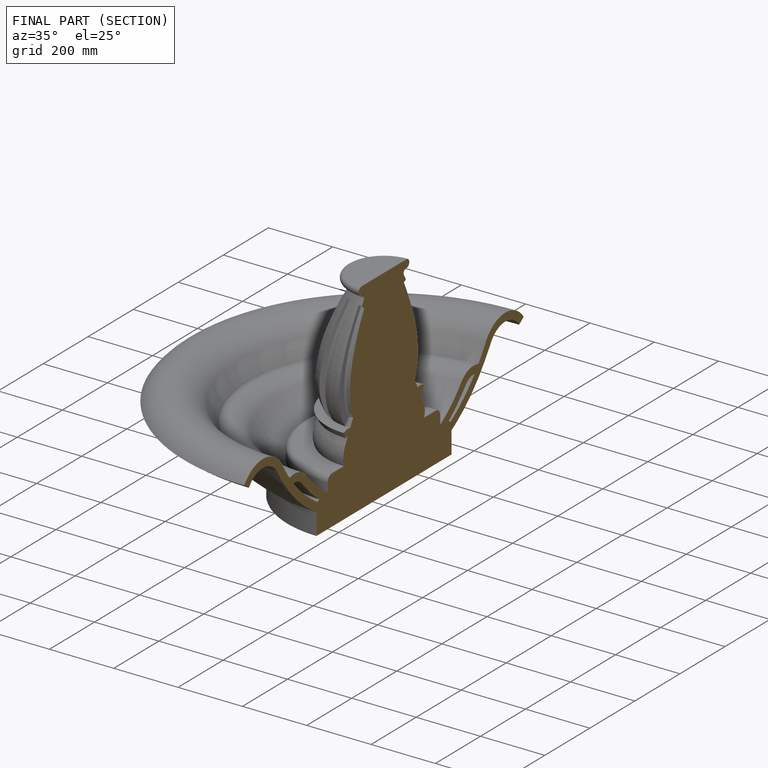
[diagram: finished part — half-section view (interior)]
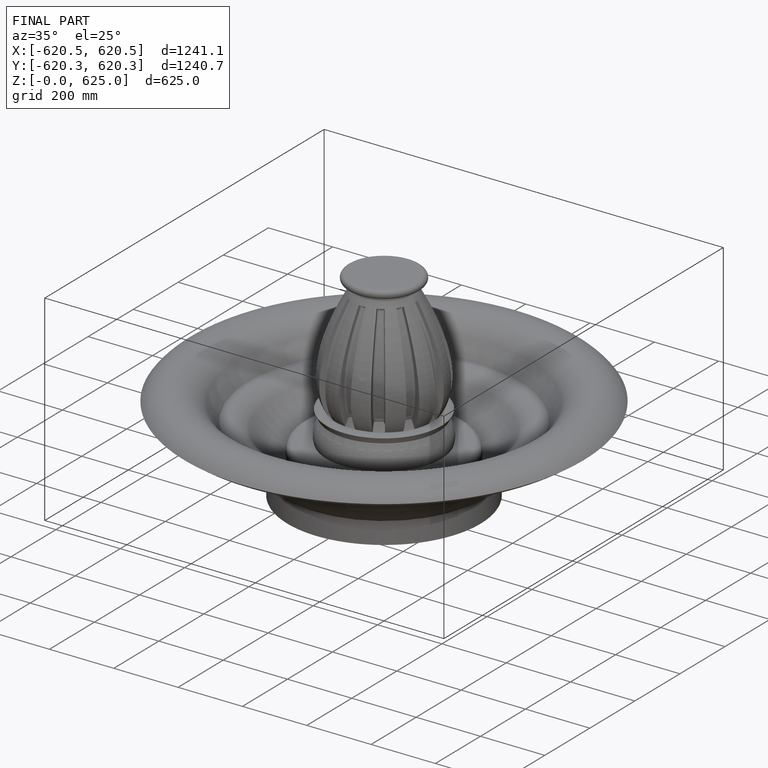
[diagram: finished part — iso view with bounding-box wireframe]
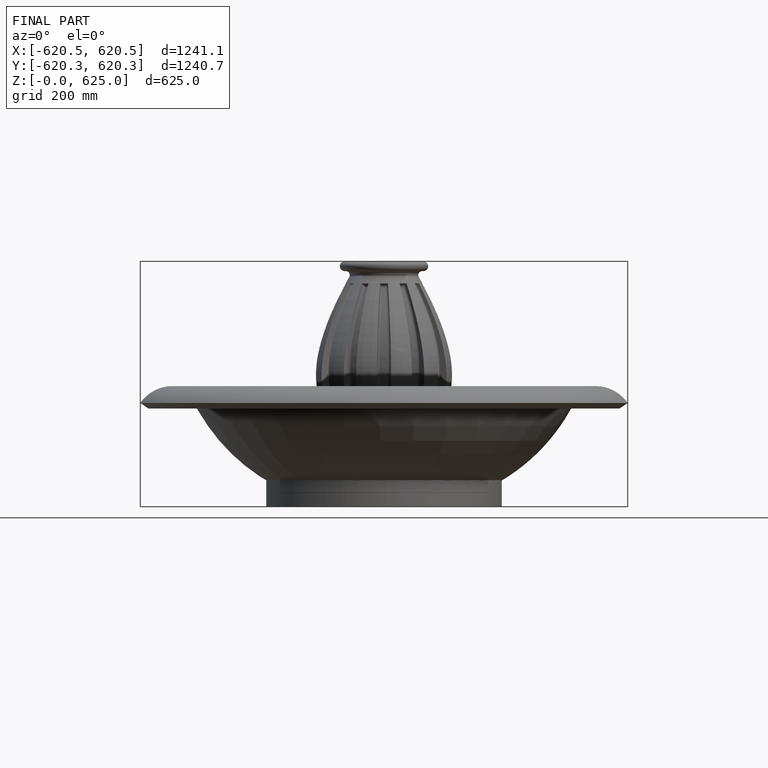
[diagram: finished part — front view with bounding-box wireframe]
